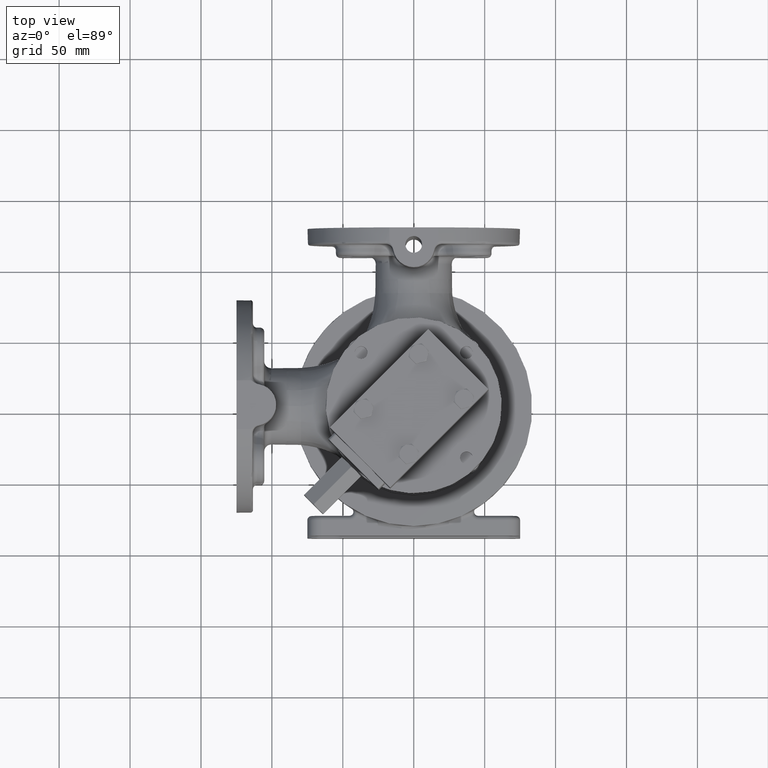
[diagram: clean part render]
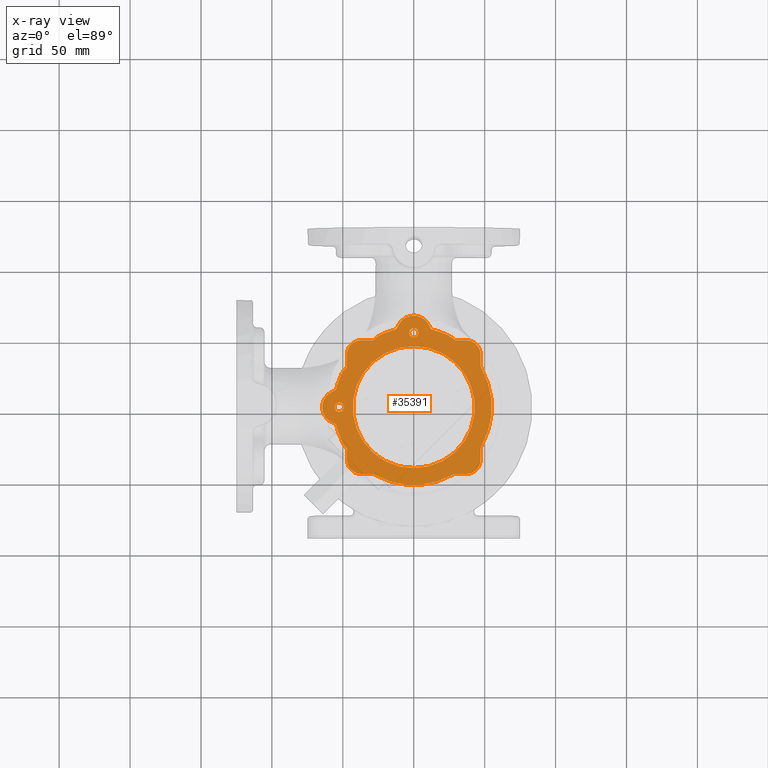
[diagram: x-ray — body ghosted, one internal face saturated and labeled with its STEP entity id]
A machine part, top view, then the same camera in x-ray: the body is ghosted and one INTERNAL B-rep face — a face not visible from any outside direction — is saturated and labeled: STEP entity #35391.
In plain terms, the highlighted planar face has unit normal (0, 0, 1).
Its self-contained STEP definition (entity closure, byte-faithful):
#6=CARTESIAN_POINT('',(-3.712310601229E1,-3.712310601229E1,1.415E2));
#7=DIRECTION('',(0.E0,0.E0,1.E0));
#8=DIRECTION('',(-1.E0,0.E0,0.E0));
#9=AXIS2_PLACEMENT_3D('',#6,#7,#8);
#81=CARTESIAN_POINT('',(0.E0,5.25E1,1.415E2));
#82=DIRECTION('',(0.E0,0.E0,-1.E0));
#83=DIRECTION('',(-1.E0,0.E0,0.E0));
#84=AXIS2_PLACEMENT_3D('',#81,#82,#83);
#86=CARTESIAN_POINT('',(0.E0,5.25E1,1.415E2));
#87=DIRECTION('',(0.E0,0.E0,-1.E0));
#88=DIRECTION('',(1.E0,0.E0,0.E0));
#89=AXIS2_PLACEMENT_3D('',#86,#87,#88);
#91=CARTESIAN_POINT('',(-5.25E1,-1.679623939384E-14,1.415E2));
#92=DIRECTION('',(0.E0,0.E0,-1.E0));
#93=DIRECTION('',(-1.E0,0.E0,0.E0));
#94=AXIS2_PLACEMENT_3D('',#91,#92,#93);
#96=CARTESIAN_POINT('',(-5.25E1,-1.679623939384E-14,1.415E2));
#97=DIRECTION('',(0.E0,0.E0,-1.E0));
#98=DIRECTION('',(1.E0,0.E0,0.E0));
#99=AXIS2_PLACEMENT_3D('',#96,#97,#98);
#101=CARTESIAN_POINT('',(0.E0,-1.679623939384E-14,1.415E2));
#102=DIRECTION('',(0.E0,0.E0,1.E0));
#103=DIRECTION('',(-4.953062519602E-1,-8.687184335382E-1,0.E0));
#104=AXIS2_PLACEMENT_3D('',#101,#102,#103);
#139=CARTESIAN_POINT('',(-2.971837511761E1,-5.212310601229E1,1.415E2));
#140=DIRECTION('',(0.E0,0.E0,1.E0));
#141=DIRECTION('',(4.953062519602E-1,8.687184335382E-1,0.E0));
#142=AXIS2_PLACEMENT_3D('',#139,#140,#141);
#160=DIRECTION('',(1.E0,0.E0,0.E0));
#161=VECTOR('',#160,7.404730894680E0);
#162=CARTESIAN_POINT('',(-3.712310601229E1,-4.712310601229E1,1.415E2));
#163=LINE('',#162,#161);
#590=DIRECTION('',(0.E0,-1.E0,1.091621590572E-14));
#591=VECTOR('',#590,7.810868622207E0);
#592=CARTESIAN_POINT('',(-4.712310601229E1,-2.931223739009E1,1.415E2));
#593=LINE('',#592,#591);
#619=CARTESIAN_POINT('',(-4.728166174774E1,-2.915214253709E1,1.415E2));
#620=CARTESIAN_POINT('',(-4.726433382753E1,-2.916966617616E1,1.415E2));
#621=CARTESIAN_POINT('',(-4.722947854098E1,-2.920489765746E1,1.415E2));
#622=CARTESIAN_POINT('',(-4.717663018248E1,-2.925826053646E1,1.415E2));
#623=CARTESIAN_POINT('',(-4.714101151573E1,-2.929418719527E1,1.415E2));
#624=CARTESIAN_POINT('',(-4.712310601229E1,-2.931223739009E1,1.415E2));
#626=CARTESIAN_POINT('',(-4.971993478123E1,-2.559230963598E1,1.415E2));
#627=CARTESIAN_POINT('',(-4.970049094820E1,-2.562827645949E1,1.415E2));
#628=CARTESIAN_POINT('',(-4.966417514143E1,-2.569687999923E1,1.415E2));
#629=CARTESIAN_POINT('',(-4.961712538567E1,-2.578876515191E1,1.415E2));
#630=CARTESIAN_POINT('',(-4.957592939547E1,-2.587140109150E1,1.415E2));
#631=CARTESIAN_POINT('',(-4.953952293087E1,-2.594599272070E1,1.415E2));
#632=CARTESIAN_POINT('',(-4.950691293778E1,-2.601387637152E1,1.415E2));
#633=CARTESIAN_POINT('',(-4.947719043576E1,-2.607645616307E1,1.415E2));
#634=CARTESIAN_POINT('',(-4.944948250010E1,-2.613521708505E1,1.415E2));
#635=CARTESIAN_POINT('',(-4.942300150610E1,-2.619158212542E1,1.415E2));
#636=CARTESIAN_POINT('',(-4.939708525617E1,-2.624675601165E1,1.415E2));
#637=CARTESIAN_POINT('',(-4.937105571887E1,-2.630200062809E1,1.415E2));
#638=CARTESIAN_POINT('',(-4.934423700682E1,-2.635855526005E1,1.415E2));
#639=CARTESIAN_POINT('',(-4.931594404041E1,-2.641762002110E1,1.415E2));
#640=CARTESIAN_POINT('',(-4.928542007991E1,-2.648046969624E1,1.415E2));
#641=CARTESIAN_POINT('',(-4.925165183365E1,-2.654875095571E1,1.415E2));
#642=CARTESIAN_POINT('',(-4.921359886377E1,-2.662397622807E1,1.415E2));
#643=CARTESIAN_POINT('',(-4.917015023319E1,-2.670753526085E1,1.415E2));
#644=CARTESIAN_POINT('',(-4.912013069611E1,-2.680067893822E1,1.415E2));
#645=CARTESIAN_POINT('',(-4.906214885176E1,-2.690475021904E1,1.415E2));
#646=CARTESIAN_POINT('',(-4.899476704013E1,-2.702085532956E1,1.415E2));
#647=CARTESIAN_POINT('',(-4.891651462517E1,-2.714986850313E1,1.415E2));
#648=CARTESIAN_POINT('',(-4.882527272545E1,-2.729341314129E1,1.415E2));
#649=CARTESIAN_POINT('',(-4.871890976769E1,-2.745273081834E1,1.415E2));
#650=CARTESIAN_POINT('',(-4.859488132557E1,-2.762931459446E1,1.415E2));
#651=CARTESIAN_POINT('',(-4.845026061657E1,-2.782479349803E1,1.415E2));
#652=CARTESIAN_POINT('',(-4.828180692010E1,-2.804079009626E1,1.415E2));
#653=CARTESIAN_POINT('',(-4.808602242760E1,-2.827887032430E1,1.415E2));
#654=CARTESIAN_POINT('',(-4.785872508746E1,-2.854100845344E1,1.415E2));
#655=CARTESIAN_POINT('',(-4.759556703183E1,-2.882902734419E1,1.415E2));
#656=CARTESIAN_POINT('',(-4.739110825189E1,-2.904145883565E1,1.415E2));
#657=CARTESIAN_POINT('',(-4.728166174774E1,-2.915214253709E1,1.415E2));
#669=CARTESIAN_POINT('',(-5.007215140923E1,-2.501190226950E1,1.415E2));
#670=CARTESIAN_POINT('',(-5.004144000523E1,-2.505785123759E1,1.415E2));
#671=CARTESIAN_POINT('',(-4.998310307595E1,-2.514699384683E1,1.415E2));
#672=CARTESIAN_POINT('',(-4.990452325758E1,-2.527220618376E1,1.415E2));
#673=CARTESIAN_POINT('',(-4.983453337879E1,-2.538861384531E1,1.415E2));
#674=CARTESIAN_POINT('',(-4.977272619964E1,-2.549596375449E1,1.415E2));
#675=CARTESIAN_POINT('',(-4.973671893239E1,-2.556126269307E1,1.415E2));
#676=CARTESIAN_POINT('',(-4.971993478123E1,-2.559230963598E1,1.415E2));
#683=CARTESIAN_POINT('',(-5.061314195032E1,-2.408514964643E1,1.415E2));
#684=CARTESIAN_POINT('',(-5.058251431894E1,-2.414802683131E1,1.415E2));
#685=CARTESIAN_POINT('',(-5.051470017509E1,-2.428133857664E1,1.415E2));
#686=CARTESIAN_POINT('',(-5.039153244684E1,-2.450336517100E1,1.415E2));
#687=CARTESIAN_POINT('',(-5.024576506462E1,-2.474613981131E1,1.415E2));
#688=CARTESIAN_POINT('',(-5.013278361899E1,-2.492118758747E1,1.415E2));
#689=CARTESIAN_POINT('',(-5.007215140923E1,-2.501190226950E1,1.415E2));
#706=CARTESIAN_POINT('',(-5.061314195032E1,-2.408514964643E1,1.415E2));
#707=CARTESIAN_POINT('',(-5.081898038992E1,-2.366257113717E1,1.415E2));
#708=CARTESIAN_POINT('',(-5.121966723622E1,-2.281246045666E1,1.414999999998E2));
#709=CARTESIAN_POINT('',(-5.178793003969E1,-2.152208179754E1,1.415000000008E2));
#710=CARTESIAN_POINT('',(-5.232291506602E1,-2.021757921288E1,1.414999999969E2));
#711=CARTESIAN_POINT('',(-5.265710663671E1,-1.933923191208E1,1.415000000068E2));
#712=CARTESIAN_POINT('',(-5.281860501E1,-1.889782472858E1,1.415000000068E2));
#733=CARTESIAN_POINT('',(-5.281860501E1,-1.889782472858E1,1.415000000068E2));
#734=CARTESIAN_POINT('',(-5.288837114108E1,-1.870714009882E1,1.415000000068E2));
#735=CARTESIAN_POINT('',(-5.301768986092E1,-1.834718103312E1,1.414999999969E2));
#736=CARTESIAN_POINT('',(-5.318087828525E1,-1.787868141150E1,1.415000000008E2));
#737=CARTESIAN_POINT('',(-5.332178001087E1,-1.746295119127E1,1.414999999998E2));
#738=CARTESIAN_POINT('',(-5.344577217384E1,-1.708786180374E1,1.415000000001E2));
#739=CARTESIAN_POINT('',(-5.355836012587E1,-1.673930769350E1,1.415E2));
#740=CARTESIAN_POINT('',(-5.366438628176E1,-1.640371683705E1,1.415E2));
#741=CARTESIAN_POINT('',(-5.376865376495E1,-1.606624375385E1,1.414999999999E2));
#742=CARTESIAN_POINT('',(-5.387112685010E1,-1.572683629754E1,1.415000000004E2));
#743=CARTESIAN_POINT('',(-5.397141727463E1,-1.538674296131E1,1.414999999987E2));
#744=CARTESIAN_POINT('',(-5.403657538972E1,-1.516042510726E1,1.415000000028E2));
#745=CARTESIAN_POINT('',(-5.406876129736E1,-1.504727061823E1,1.415000000028E2));
#752=CARTESIAN_POINT('',(-5.406876129736E1,-1.504727061823E1,1.415000000028E2));
#753=CARTESIAN_POINT('',(-5.411400698140E1,-1.488820227626E1,1.415000000028E2));
#754=CARTESIAN_POINT('',(-5.420309648044E1,-1.456953369677E1,1.415000000949E2));
#755=CARTESIAN_POINT('',(-5.433247792379E1,-1.409008372011E1,1.414999996637E2));
#756=CARTESIAN_POINT('',(-5.441589077656E1,-1.376951173394E1,1.415000007215E2));
#757=CARTESIAN_POINT('',(-5.445688851025E1,-1.360897513629E1,1.415000007215E2));
#764=CARTESIAN_POINT('',(-5.766607556080E1,-1.442850605003E1,1.415E2));
#765=DIRECTION('',(0.E0,0.E0,1.E0));
#766=DIRECTION('',(5.429244443501E-1,8.397815476225E-1,0.E0));
#767=AXIS2_PLACEMENT_3D('',#764,#765,#766);
#774=CARTESIAN_POINT('',(-5.713956354499E1,-1.106681760069E1,1.415E2));
#775=CARTESIAN_POINT('',(-5.706433195329E1,-1.109835723390E1,1.415E2));
#776=CARTESIAN_POINT('',(-5.691279536431E1,-1.116128120254E1,1.415E2));
#777=CARTESIAN_POINT('',(-5.668225561049E1,-1.125517934679E1,1.415E2));
#778=CARTESIAN_POINT('',(-5.652641025586E1,-1.131742872816E1,1.415E2));
#779=CARTESIAN_POINT('',(-5.644794576263E1,-1.134846071922E1,1.415E2));
#786=CARTESIAN_POINT('',(-5.25E1,-2.048347565099E-14,1.415E2));
#787=DIRECTION('',(0.E0,0.E0,-1.E0));
#788=DIRECTION('',(-3.866302718803E-1,-9.222348035429E-1,0.E0));
#789=AXIS2_PLACEMENT_3D('',#786,#787,#788);
#875=CARTESIAN_POINT('',(-5.616205261286E1,1.154574625358E1,1.415E2));
#876=CARTESIAN_POINT('',(-5.637105221390E1,1.145253636057E1,1.415E2));
#877=CARTESIAN_POINT('',(-5.678387569379E1,1.126382077468E1,1.415E2));
#878=CARTESIAN_POINT('',(-5.738800267353E1,1.097456826785E1,1.415E2));
#879=CARTESIAN_POINT('',(-5.778056001826E1,1.077789891593E1,1.415E2));
#880=CARTESIAN_POINT('',(-5.797429868267E1,1.067857929843E1,1.415E2));
#887=CARTESIAN_POINT('',(-5.734347622586E1,1.419478788130E1,1.415E2));
#888=DIRECTION('',(0.E0,0.E0,1.E0));
#889=DIRECTION('',(4.073093388434E-1,-9.132902619053E-1,0.E0));
#890=AXIS2_PLACEMENT_3D('',#887,#888,#889);
#897=CARTESIAN_POINT('',(-5.406871411020E1,1.522148055457E1,1.415E2));
#898=CARTESIAN_POINT('',(-5.412354117327E1,1.502752859218E1,1.415E2));
#899=CARTESIAN_POINT('',(-5.423065912158E1,1.464072503325E1,1.415E2));
#900=CARTESIAN_POINT('',(-5.438430045240E1,1.406394691566E1,1.415E2));
#901=CARTESIAN_POINT('',(-5.448191480599E1,1.368174982552E1,1.415E2));
#902=CARTESIAN_POINT('',(-5.452954880181E1,1.349123347441E1,1.415E2));
#922=CARTESIAN_POINT('',(-5.253157784740E1,1.966458970883E1,1.415E2));
#923=CARTESIAN_POINT('',(-5.258798210665E1,1.951726025307E1,1.415E2));
#924=CARTESIAN_POINT('',(-5.270108768979E1,1.922294209466E1,1.415E2));
#925=CARTESIAN_POINT('',(-5.286903311540E1,1.878454758167E1,1.415E2));
#926=CARTESIAN_POINT('',(-5.303689072775E1,1.834068624009E1,1.415E2));
#927=CARTESIAN_POINT('',(-5.320516900533E1,1.788568509376E1,1.415E2));
#928=CARTESIAN_POINT('',(-5.337459521622E1,1.741311557611E1,1.415E2));
#929=CARTESIAN_POINT('',(-5.354555619704E1,1.691691591907E1,1.415E2));
#930=CARTESIAN_POINT('',(-5.371832327567E1,1.639093845517E1,1.415E2));
#931=CARTESIAN_POINT('',(-5.389270654575E1,1.583045588136E1,1.415E2));
#932=CARTESIAN_POINT('',(-5.401007373416E1,1.542890941775E1,1.415E2));
#933=CARTESIAN_POINT('',(-5.406871411020E1,1.522148055457E1,1.415E2));
#940=CARTESIAN_POINT('',(-5.253157784740E1,1.966458970883E1,1.415E2));
#941=CARTESIAN_POINT('',(-5.240106294892E1,2.000549721075E1,1.415E2));
#942=CARTESIAN_POINT('',(-5.213331050893E1,2.068454912003E1,1.415E2));
#943=CARTESIAN_POINT('',(-5.171145379172E1,2.169501443821E1,1.415E2));
#944=CARTESIAN_POINT('',(-5.126957403387E1,2.269685117817E1,1.415E2));
#945=CARTESIAN_POINT('',(-5.096180243946E1,2.335864739473E1,1.415E2));
#946=CARTESIAN_POINT('',(-5.080460267298E1,2.368805407818E1,1.415E2));
#965=CARTESIAN_POINT('',(-4.873159145178E1,2.666391277988E1,1.415E2));
#966=CARTESIAN_POINT('',(-4.888429041394E1,2.648836551192E1,1.415E2));
#967=CARTESIAN_POINT('',(-4.916932707595E1,2.615021368601E1,1.415E2));
#968=CARTESIAN_POINT('',(-4.953801686022E1,2.568464866278E1,1.415E2));
#969=CARTESIAN_POINT('',(-4.985189809305E1,2.526158170490E1,1.415E2));
#970=CARTESIAN_POINT('',(-5.011665459107E1,2.487951564874E1,1.415E2));
#971=CARTESIAN_POINT('',(-5.033944296658E1,2.453395380745E1,1.415E2));
#972=CARTESIAN_POINT('',(-5.052561465283E1,2.422195623406E1,1.415E2));
#973=CARTESIAN_POINT('',(-5.068024322709E1,2.394027866367E1,1.415E2));
#974=CARTESIAN_POINT('',(-5.076595995046E1,2.376902816798E1,1.415E2));
#975=CARTESIAN_POINT('',(-5.080460267298E1,2.368805407818E1,1.415E2));
#1005=CARTESIAN_POINT('',(-4.845296708379E1,2.697903018443E1,1.415E2));
#1006=CARTESIAN_POINT('',(-4.848442021942E1,2.694403003371E1,1.415E2));
#1007=CARTESIAN_POINT('',(-4.854699587603E1,2.687401887062E1,1.415E2));
#1008=CARTESIAN_POINT('',(-4.863987037579E1,2.676897578589E1,1.415E2));
#1009=CARTESIAN_POINT('',(-4.870112647873E1,2.669893622657E1,1.415E2));
#1010=CARTESIAN_POINT('',(-4.873159145178E1,2.666391277988E1,1.415E2));
#1024=CARTESIAN_POINT('',(-4.813603270686E1,2.732504614282E1,1.415E2));
#1025=CARTESIAN_POINT('',(-4.817288231146E1,2.728554063773E1,1.415E2));
#1026=CARTESIAN_POINT('',(-4.824551085024E1,2.720725369339E1,1.415E2));
#1027=CARTESIAN_POINT('',(-4.835112494504E1,2.709188119269E1,1.415E2));
#1028=CARTESIAN_POINT('',(-4.841937781692E1,2.701640736379E1,1.415E2));
#1029=CARTESIAN_POINT('',(-4.845296708379E1,2.697903018443E1,1.415E2));
#1043=CARTESIAN_POINT('',(-4.712310601229E1,2.836823103778E1,1.415E2));
#1044=CARTESIAN_POINT('',(-4.716614798511E1,2.832579950894E1,1.415E2));
#1045=CARTESIAN_POINT('',(-4.725191074678E1,2.824077368263E1,1.415E2));
#1046=CARTESIAN_POINT('',(-4.737948232175E1,2.811290245910E1,1.415E2));
#1047=CARTESIAN_POINT('',(-4.750636462361E1,2.798428834074E1,1.415E2));
#1048=CARTESIAN_POINT('',(-4.763276213464E1,2.785467126329E1,1.415E2));
#1049=CARTESIAN_POINT('',(-4.775905142758E1,2.772381408350E1,1.415E2));
#1050=CARTESIAN_POINT('',(-4.788512764375E1,2.759187568178E1,1.415E2));
#1051=CARTESIAN_POINT('',(-4.801082897004E1,2.745890569501E1,1.415E2));
#1052=CARTESIAN_POINT('',(-4.809433935198E1,2.736975553927E1,1.415E2));
#1053=CARTESIAN_POINT('',(-4.813603270686E1,2.732504614282E1,1.415E2));
#1060=DIRECTION('',(0.E0,-1.E0,0.E0));
#1061=VECTOR('',#1060,8.754874974514E0);
#1062=CARTESIAN_POINT('',(-4.712310601229E1,3.712310601229E1,1.415E2));
#1063=LINE('',#1062,#1061);
#1101=CARTESIAN_POINT('',(-3.712310601229E1,3.712310601229E1,1.415E2));
#1102=DIRECTION('',(0.E0,0.E0,1.E0));
#1103=DIRECTION('',(0.E0,1.E0,0.E0));
#1104=AXIS2_PLACEMENT_3D('',#1101,#1102,#1103);
#1115=DIRECTION('',(-1.E0,0.E0,0.E0));
#1116=VECTOR('',#1115,8.754881892562E0);
#1117=CARTESIAN_POINT('',(-2.836822411973E1,4.712310601229E1,1.415E2));
#1118=LINE('',#1117,#1116);
#1152=CARTESIAN_POINT('',(-2.732504094214E1,4.813603532393E1,1.415E2));
#1153=CARTESIAN_POINT('',(-2.736982813797E1,4.809426902006E1,1.415E2));
#1154=CARTESIAN_POINT('',(-2.745916608208E1,4.801057958225E1,1.415E2));
#1155=CARTESIAN_POINT('',(-2.759260573174E1,4.788443882016E1,1.415E2));
#1156=CARTESIAN_POINT('',(-2.772493599841E1,4.775797552297E1,1.415E2));
#1157=CARTESIAN_POINT('',(-2.785595248212E1,4.763151441971E1,1.415E2));
#1158=CARTESIAN_POINT('',(-2.798532311988E1,4.750534478752E1,1.415E2));
#1159=CARTESIAN_POINT('',(-2.811350159140E1,4.737888905129E1,1.415E2));
#1160=CARTESIAN_POINT('',(-2.824092119397E1,4.725175746763E1,1.415E2));
#1161=CARTESIAN_POINT('',(-2.832582446815E1,4.716611524430E1,1.415E2));
#1162=CARTESIAN_POINT('',(-2.836822411973E1,4.712310601229E1,1.415E2));
#1169=CARTESIAN_POINT('',(-2.697903021253E1,4.845296705867E1,1.415E2));
#1170=CARTESIAN_POINT('',(-2.701640693432E1,4.841937820286E1,1.415E2));
#1171=CARTESIAN_POINT('',(-2.709187968933E1,4.835112601283E1,1.415E2));
#1172=CARTESIAN_POINT('',(-2.720725148772E1,4.824551391191E1,1.415E2));
#1173=CARTESIAN_POINT('',(-2.728553588872E1,4.817288448977E1,1.415E2));
#1174=CARTESIAN_POINT('',(-2.732504094214E1,4.813603532393E1,1.415E2));
#1183=CARTESIAN_POINT('',(-2.666391288122E1,4.873159136349E1,1.415E2));
#1184=CARTESIAN_POINT('',(-2.669893632459E1,4.870112639305E1,1.415E2));
#1185=CARTESIAN_POINT('',(-2.676897589901E1,4.863987027632E1,1.415E2));
#1186=CARTESIAN_POINT('',(-2.687401894510E1,4.854699580970E1,1.415E2));
#1187=CARTESIAN_POINT('',(-2.694403008415E1,4.848442017431E1,1.415E2));
#1188=CARTESIAN_POINT('',(-2.697903021253E1,4.845296705867E1,1.415E2));
#1202=CARTESIAN_POINT('',(-2.368805395646E1,5.080460263206E1,1.415E2));
#1203=CARTESIAN_POINT('',(-2.376900919727E1,5.076596901597E1,1.415E2));
#1204=CARTESIAN_POINT('',(-2.394024327549E1,5.068026210475E1,1.415E2));
#1205=CARTESIAN_POINT('',(-2.422196926158E1,5.052560870635E1,1.415E2));
#1206=CARTESIAN_POINT('',(-2.453406068142E1,5.033937785560E1,1.415E2));
#1207=CARTESIAN_POINT('',(-2.487970595554E1,5.011652780379E1,1.415E2));
#1208=CARTESIAN_POINT('',(-2.526186795061E1,4.985169367125E1,1.415E2));
#1209=CARTESIAN_POINT('',(-2.568501130305E1,4.953773764041E1,1.415E2));
#1210=CARTESIAN_POINT('',(-2.615044727218E1,4.916913264378E1,1.415E2));
#1211=CARTESIAN_POINT('',(-2.648845610169E1,4.888421161597E1,1.415E2));
#1212=CARTESIAN_POINT('',(-2.666391288122E1,4.873159136349E1,1.415E2));
#1264=CARTESIAN_POINT('',(-1.966458962805E1,5.253157787882E1,1.415E2));
#1265=CARTESIAN_POINT('',(-2.000549706367E1,5.240106300630E1,1.415E2));
#1266=CARTESIAN_POINT('',(-2.068454883061E1,5.213331062807E1,1.415E2));
#1267=CARTESIAN_POINT('',(-2.169501390419E1,5.171145400603E1,1.415E2));
#1268=CARTESIAN_POINT('',(-2.269685059401E1,5.126957434931E1,1.415E2));
#1269=CARTESIAN_POINT('',(-2.335864754397E1,5.096180227169E1,1.415E2));
#1270=CARTESIAN_POINT('',(-2.368805395646E1,5.080460263206E1,1.415E2));
#1272=CARTESIAN_POINT('',(-1.522148056449E1,5.406871410739E1,1.415E2));
#1273=CARTESIAN_POINT('',(-1.542888664544E1,5.401008016641E1,1.415E2));
#1274=CARTESIAN_POINT('',(-1.583041624199E1,5.389271854014E1,1.415E2));
#1275=CARTESIAN_POINT('',(-1.639098593376E1,5.371830855361E1,1.415E2));
#1276=CARTESIAN_POINT('',(-1.691707915942E1,5.354550218994E1,1.415E2));
#1277=CARTESIAN_POINT('',(-1.741334515061E1,5.337451445133E1,1.415E2));
#1278=CARTESIAN_POINT('',(-1.788593605936E1,5.320507763903E1,1.415E2));
#1279=CARTESIAN_POINT('',(-1.834095669296E1,5.303678943117E1,1.415E2));
#1280=CARTESIAN_POINT('',(-1.878480351440E1,5.286893548727E1,1.415E2));
#1281=CARTESIAN_POINT('',(-1.922312545719E1,5.270101715538E1,1.415E2));
#1282=CARTESIAN_POINT('',(-1.951733072695E1,5.258795512479E1,1.415E2));
#1283=CARTESIAN_POINT('',(-1.966458962805E1,5.253157787882E1,1.415E2));
#1290=CARTESIAN_POINT('',(-1.349123352949E1,5.452954881873E1,1.415E2));
#1291=CARTESIAN_POINT('',(-1.368174986228E1,5.448191482753E1,1.415E2));
#1292=CARTESIAN_POINT('',(-1.406394705765E1,5.438430040048E1,1.415E2));
#1293=CARTESIAN_POINT('',(-1.464072510954E1,5.423065910462E1,1.415E2));
#1294=CARTESIAN_POINT('',(-1.502752863169E1,5.412354116217E1,1.415E2));
#1295=CARTESIAN_POINT('',(-1.522148056449E1,5.406871410739E1,1.415E2));
#1315=CARTESIAN_POINT('',(-1.419478794616E1,5.734347649520E1,1.415E2));
#1316=DIRECTION('',(0.E0,0.E0,1.E0));
#1317=DIRECTION('',(2.425591529596E-1,-9.701366178614E-1,0.E0));
#1318=AXIS2_PLACEMENT_3D('',#1315,#1316,#1317);
#1320=CARTESIAN_POINT('',(-1.067857959211E1,5.797429795120E1,1.415E2));
#1321=CARTESIAN_POINT('',(-1.077791520416E1,5.778052703165E1,1.415E2));
#1322=CARTESIAN_POINT('',(-1.097460557515E1,5.738792705227E1,1.415E2));
#1323=CARTESIAN_POINT('',(-1.126385627646E1,5.678379945090E1,1.415E2));
#1324=CARTESIAN_POINT('',(-1.145255091784E1,5.637101955302E1,1.415E2));
#1325=CARTESIAN_POINT('',(-1.154574609490E1,5.616205292622E1,1.415E2));
#1332=CARTESIAN_POINT('',(0.E0,5.25E1,1.415E2));
#1333=DIRECTION('',(0.E0,0.E0,-1.E0));
#1334=DIRECTION('',(-8.898816331407E-1,4.561914937817E-1,0.E0));
#1335=AXIS2_PLACEMENT_3D('',#1332,#1333,#1334);
#1421=CARTESIAN_POINT('',(1.134846050886E1,5.644794625592E1,1.415E2));
#1422=CARTESIAN_POINT('',(1.131742728199E1,5.652641386801E1,1.415E2));
#1423=CARTESIAN_POINT('',(1.125517639444E1,5.668226299290E1,1.415E2));
#1424=CARTESIAN_POINT('',(1.116127842814E1,5.691280230984E1,1.415E2));
#1425=CARTESIAN_POINT('',(1.109835624970E1,5.706433444119E1,1.415E2));
#1426=CARTESIAN_POINT('',(1.106681802413E1,5.713956264001E1,1.415E2));
#1433=CARTESIAN_POINT('',(1.442850623085E1,5.766607628852E1,1.415E2));
#1434=DIRECTION('',(0.E0,0.E0,1.E0));
#1435=DIRECTION('',(-9.299154720749E-1,-3.677733198531E-1,0.E0));
#1436=AXIS2_PLACEMENT_3D('',#1433,#1434,#1435);
#1443=CARTESIAN_POINT('',(1.360897515180E1,5.445688853384E1,1.415000006868E2));
#1444=CARTESIAN_POINT('',(1.354842878414E1,5.447234899091E1,1.415000006868E2));
#1445=CARTESIAN_POINT('',(1.342950839695E1,5.450607588243E1,1.414999996813E2));
#1446=CARTESIAN_POINT('',(1.325758359284E1,5.456476013327E1,1.415000000854E2));
#1447=CARTESIAN_POINT('',(1.309221436504E1,5.463119305069E1,1.414999999771E2));
#1448=CARTESIAN_POINT('',(1.293335063813E1,5.470505678582E1,1.415000000061E2));
#1449=CARTESIAN_POINT('',(1.278006943974E1,5.478656550158E1,1.414999999984E2));
#1450=CARTESIAN_POINT('',(1.263252837251E1,5.487553013529E1,1.415000000004E2));
#1451=CARTESIAN_POINT('',(1.249081477968E1,5.497175700361E1,1.414999999999E2));
#1452=CARTESIAN_POINT('',(1.235455929726E1,5.507541217453E1,1.415E2));
#1453=CARTESIAN_POINT('',(1.222333649704E1,5.518688962296E1,1.415E2));
#1454=CARTESIAN_POINT('',(1.209735686908E1,5.530617556032E1,1.415E2));
#1455=CARTESIAN_POINT('',(1.197682635267E1,5.543320741151E1,1.415E2));
#1456=CARTESIAN_POINT('',(1.186125693916E1,5.556878735773E1,1.415E2));
#1457=CARTESIAN_POINT('',(1.175088588194E1,5.571312394919E1,1.415E2));
#1458=CARTESIAN_POINT('',(1.168098621583E1,5.581524555569E1,1.415E2));
#1459=CARTESIAN_POINT('',(1.164699947088E1,5.586781539924E1,1.415E2));
#1466=CARTESIAN_POINT('',(1.504727061823E1,5.406876129736E1,1.415000000028E2));
#1467=CARTESIAN_POINT('',(1.488820237864E1,5.411400695213E1,1.415000000028E2));
#1468=CARTESIAN_POINT('',(1.456953393667E1,5.420309641709E1,1.415000000903E2));
#1469=CARTESIAN_POINT('',(1.409008396641E1,5.433247783779E1,1.414999996799E2));
#1470=CARTESIAN_POINT('',(1.376951184515E1,5.441589077572E1,1.415000006868E2));
#1471=CARTESIAN_POINT('',(1.360897515180E1,5.445688853384E1,1.415000006868E2));
#1478=CARTESIAN_POINT('',(1.889782472700E1,5.281860501049E1,1.415000000067E2));
#1479=CARTESIAN_POINT('',(1.870714007721E1,5.288837114996E1,1.415000000067E2));
#1480=CARTESIAN_POINT('',(1.834718098101E1,5.301768987984E1,1.414999999969E2));
#1481=CARTESIAN_POINT('',(1.787868134485E1,5.318087830877E1,1.415000000008E2));
#1482=CARTESIAN_POINT('',(1.746295110215E1,5.332178003992E1,1.414999999998E2));
#1483=CARTESIAN_POINT('',(1.708786172331E1,5.344577220014E1,1.415000000001E2));
#1484=CARTESIAN_POINT('',(1.673930763050E1,5.355836014599E1,1.415E2));
#1485=CARTESIAN_POINT('',(1.640371679293E1,5.366438629567E1,1.415E2));
#1486=CARTESIAN_POINT('',(1.606624372203E1,5.376865377478E1,1.414999999999E2));
#1487=CARTESIAN_POINT('',(1.572683627105E1,5.387112685784E1,1.415000000004E2));
#1488=CARTESIAN_POINT('',(1.538674296300E1,5.397141727419E1,1.414999999987E2));
#1489=CARTESIAN_POINT('',(1.516042510905E1,5.403657538921E1,1.415000000028E2));
#1490=CARTESIAN_POINT('',(1.504727061823E1,5.406876129736E1,1.415000000028E2));
#1497=CARTESIAN_POINT('',(2.408514955552E1,5.061314190354E1,1.415E2));
#1498=CARTESIAN_POINT('',(2.366257129750E1,5.081898022386E1,1.415E2));
#1499=CARTESIAN_POINT('',(2.281245996213E1,5.121966750944E1,1.414999999998E2));
#1500=CARTESIAN_POINT('',(2.152208136253E1,5.178793021002E1,1.415000000008E2));
#1501=CARTESIAN_POINT('',(2.021757901641E1,5.232291514505E1,1.414999999969E2));
#1502=CARTESIAN_POINT('',(1.933923184110E1,5.265710666260E1,1.415000000067E2));
#1503=CARTESIAN_POINT('',(1.889782472700E1,5.281860501049E1,1.415000000067E2));
#1524=CARTESIAN_POINT('',(2.501190092848E1,5.007215205480E1,1.415E2));
#1525=CARTESIAN_POINT('',(2.492121109805E1,5.013276779266E1,1.415E2));
#1526=CARTESIAN_POINT('',(2.474620157067E1,5.024572617848E1,1.415E2));
#1527=CARTESIAN_POINT('',(2.450344643379E1,5.039148585490E1,1.415E2));
#1528=CARTESIAN_POINT('',(2.428140485224E1,5.051466560417E1,1.415E2));
#1529=CARTESIAN_POINT('',(2.414805418889E1,5.058250103153E1,1.415E2));
#1530=CARTESIAN_POINT('',(2.408514955552E1,5.061314190354E1,1.415E2));
#1547=CARTESIAN_POINT('',(2.559230308458E1,4.971993767676E1,1.415E2));
#1548=CARTESIAN_POINT('',(2.556125645863E1,4.973672170452E1,1.415E2));
#1549=CARTESIAN_POINT('',(2.549595816116E1,4.977272871752E1,1.415E2));
#1550=CARTESIAN_POINT('',(2.538860923969E1,4.983453549168E1,1.415E2));
#1551=CARTESIAN_POINT('',(2.527220258344E1,4.990452494730E1,1.415E2));
#1552=CARTESIAN_POINT('',(2.514699132695E1,4.998310428869E1,1.415E2));
#1553=CARTESIAN_POINT('',(2.505784956804E1,5.004144080011E1,1.415E2));
#1554=CARTESIAN_POINT('',(2.501190092848E1,5.007215205480E1,1.415E2));
#1561=CARTESIAN_POINT('',(2.915213821117E1,4.728166478017E1,1.415E2));
#1562=CARTESIAN_POINT('',(2.904155997274E1,4.739100703808E1,1.415E2));
#1563=CARTESIAN_POINT('',(2.882932025059E1,4.759528836881E1,1.415E2));
#1564=CARTESIAN_POINT('',(2.854155526314E1,4.785823347300E1,1.415E2));
#1565=CARTESIAN_POINT('',(2.827963361724E1,4.808537393224E1,1.415E2));
#1566=CARTESIAN_POINT('',(2.804173229260E1,4.828104923829E1,1.415E2));
#1567=CARTESIAN_POINT('',(2.782589590477E1,4.844942029024E1,1.415E2));
#1568=CARTESIAN_POINT('',(2.763057982488E1,4.859396641408E1,1.415E2));
#1569=CARTESIAN_POINT('',(2.745413101558E1,4.871794813999E1,1.415E2));
#1570=CARTESIAN_POINT('',(2.729494988086E1,4.882426931195E1,1.415E2));
#1571=CARTESIAN_POINT('',(2.715148103786E1,4.891551139819E1,1.415E2));
#1572=CARTESIAN_POINT('',(2.702260881860E1,4.899372372624E1,1.415E2));
#1573=CARTESIAN_POINT('',(2.690676439236E1,4.906100076391E1,1.415E2));
#1574=CARTESIAN_POINT('',(2.680286635011E1,4.911893264283E1,1.415E2));
#1575=CARTESIAN_POINT('',(2.670979795833E1,4.916895409512E1,1.415E2));
#1576=CARTESIAN_POINT('',(2.662612470334E1,4.921249794324E1,1.415E2));
#1577=CARTESIAN_POINT('',(2.655055697781E1,4.925075010717E1,1.415E2));
#1578=CARTESIAN_POINT('',(2.648186488758E1,4.928473767764E1,1.415E2));
#1579=CARTESIAN_POINT('',(2.641864336307E1,4.931545121839E1,1.415E2));
#1580=CARTESIAN_POINT('',(2.635936755598E1,4.934385018319E1,1.415E2));
#1581=CARTESIAN_POINT('',(2.630268941941E1,4.937073018039E1,1.415E2));
#1582=CARTESIAN_POINT('',(2.624739143534E1,4.939678626072E1,1.415E2));
#1583=CARTESIAN_POINT('',(2.619219960250E1,4.942271126275E1,1.415E2));
#1584=CARTESIAN_POINT('',(2.613584563517E1,4.944918642412E1,1.415E2));
#1585=CARTESIAN_POINT('',(2.607711072709E1,4.947688043052E1,1.415E2));
#1586=CARTESIAN_POINT('',(2.601459083670E1,4.950657142324E1,1.415E2));
#1587=CARTESIAN_POINT('',(2.594675131937E1,4.953915529520E1,1.415E2));
#1588=CARTESIAN_POINT('',(2.587214845766E1,4.957556011392E1,1.415E2));
#1589=CARTESIAN_POINT('',(2.578940717559E1,4.961679979239E1,1.415E2));
#1590=CARTESIAN_POINT('',(2.569729615932E1,4.966395612652E1,1.415E2));
#1591=CARTESIAN_POINT('',(2.562842722641E1,4.970040874022E1,1.415E2));
#1592=CARTESIAN_POINT('',(2.559230308458E1,4.971993767676E1,1.415E2));
#1604=CARTESIAN_POINT('',(2.931223942694E1,4.712310601229E1,1.415E2));
#1605=CARTESIAN_POINT('',(2.929418945906E1,4.714101119419E1,1.415E2));
#1606=CARTESIAN_POINT('',(2.925826292646E1,4.717662929944E1,1.415E2));
#1607=CARTESIAN_POINT('',(2.920489439482E1,4.722948070034E1,1.415E2));
#1608=CARTESIAN_POINT('',(2.916966552581E1,4.726433388707E1,1.415E2));
#1609=CARTESIAN_POINT('',(2.915213821117E1,4.728166478017E1,1.415E2));
#1611=DIRECTION('',(-1.E0,0.E0,-1.091621875236E-14));
#1612=VECTOR('',#1611,7.810866585355E0);
#1613=CARTESIAN_POINT('',(3.712310601229E1,4.712310601229E1,1.415E2));
#1614=LINE('',#1613,#1612);
#1644=CARTESIAN_POINT('',(3.712310601229E1,3.712310601229E1,1.415E2));
#1645=DIRECTION('',(0.E0,0.E0,1.E0));
#1646=DIRECTION('',(1.E0,0.E0,0.E0));
#1647=AXIS2_PLACEMENT_3D('',#1644,#1645,#1646);
#1719=DIRECTION('',(0.E0,1.E0,0.E0));
#1720=VECTOR('',#1719,7.404730894680E0);
#1721=CARTESIAN_POINT('',(4.712310601229E1,2.971837511761E1,1.415E2));
#1722=LINE('',#1721,#1720);
#1776=CARTESIAN_POINT('',(5.212310601229E1,2.971837511761E1,1.415E2));
#1777=DIRECTION('',(0.E0,0.E0,-1.E0));
#1778=DIRECTION('',(-8.687184335411E-1,-4.953062519552E-1,0.E0));
#1779=AXIS2_PLACEMENT_3D('',#1776,#1777,#1778);
#1797=CARTESIAN_POINT('',(0.E0,-1.679623939384E-14,1.415E2));
#1798=DIRECTION('',(0.E0,0.E0,1.E0));
#1799=DIRECTION('',(8.687184335208E-1,-4.953062519908E-1,0.E0));
#1800=AXIS2_PLACEMENT_3D('',#1797,#1798,#1799);
#1835=CARTESIAN_POINT('',(5.212310601229E1,-2.971837511761E1,1.415E2));
#1836=DIRECTION('',(0.E0,0.E0,1.E0));
#1837=DIRECTION('',(-8.687184337301E-1,4.953062516237E-1,0.E0));
#1838=AXIS2_PLACEMENT_3D('',#1835,#1836,#1837);
#1867=DIRECTION('',(0.E0,1.E0,0.E0));
#1868=VECTOR('',#1867,7.404730894680E0);
#1869=CARTESIAN_POINT('',(4.712310601229E1,-3.712310601229E1,1.415E2));
#1870=LINE('',#1869,#1868);
#1883=CARTESIAN_POINT('',(3.712310601229E1,-3.712310601229E1,1.415E2));
#1884=DIRECTION('',(0.E0,0.E0,1.E0));
#1885=DIRECTION('',(0.E0,-1.E0,0.E0));
#1886=AXIS2_PLACEMENT_3D('',#1883,#1884,#1885);
#1897=DIRECTION('',(1.E0,0.E0,0.E0));
#1898=VECTOR('',#1897,7.404730894680E0);
#1899=CARTESIAN_POINT('',(2.971837511761E1,-4.712310601229E1,1.415E2));
#1900=LINE('',#1899,#1898);
#1909=CARTESIAN_POINT('',(2.971837511761E1,-5.212310601229E1,1.415E2));
#1910=DIRECTION('',(0.E0,0.E0,-1.E0));
#1911=DIRECTION('',(-4.953062522704E-1,8.687184333614E-1,0.E0));
#1912=AXIS2_PLACEMENT_3D('',#1909,#1910,#1911);
#25415=CARTESIAN_POINT('',(-5.586781317640E1,-1.164700085870E1,1.415E2));
#25416=CARTESIAN_POINT('',(-5.581524339993E1,-1.168098761534E1,1.415E2));
#25417=CARTESIAN_POINT('',(-5.571312209114E1,-1.175088725819E1,1.415E2));
#25418=CARTESIAN_POINT('',(-5.556878573467E1,-1.186125824900E1,1.415E2));
#25419=CARTESIAN_POINT('',(-5.543320604497E1,-1.197682759039E1,1.415E2));
#25420=CARTESIAN_POINT('',(-5.530617439273E1,-1.209735804354E1,1.415E2));
#25421=CARTESIAN_POINT('',(-5.518688864416E1,-1.222333759541E1,1.415E2));
#25422=CARTESIAN_POINT('',(-5.507541136552E1,-1.235456031066E1,1.415E2));
#25423=CARTESIAN_POINT('',(-5.497175634817E1,-1.249081569941E1,
1.414999999999E2));
#25424=CARTESIAN_POINT('',(-5.487552961953E1,-1.263252918720E1,
1.415000000005E2));
#25425=CARTESIAN_POINT('',(-5.478656511113E1,-1.278007013929E1,
1.414999999983E2));
#25426=CARTESIAN_POINT('',(-5.470505650540E1,-1.293335121312E1,
1.415000000064E2));
#25427=CARTESIAN_POINT('',(-5.463119286695E1,-1.309221480629E1,
1.414999999760E2));
#25428=CARTESIAN_POINT('',(-5.456476002440E1,-1.325758389321E1,
1.415000000897E2));
#25429=CARTESIAN_POINT('',(-5.450607585699E1,-1.342950854524E1,
1.414999996652E2));
#25430=CARTESIAN_POINT('',(-5.447234895221E1,-1.354842882865E1,
1.415000007215E2));
#25431=CARTESIAN_POINT('',(-5.445688851025E1,-1.360897513629E1,
1.415000007215E2));
#25433=CARTESIAN_POINT('',(0.E0,0.E0,1.415E2));
#25434=DIRECTION('',(0.E0,0.E0,-1.E0));
#25435=DIRECTION('',(0.E0,1.E0,0.E0));
#25436=AXIS2_PLACEMENT_3D('',#25433,#25434,#25435);
#25438=CARTESIAN_POINT('',(0.E0,0.E0,1.415E2));
#25439=DIRECTION('',(0.E0,0.E0,-1.E0));
#25440=DIRECTION('',(0.E0,-1.E0,0.E0));
#25441=AXIS2_PLACEMENT_3D('',#25438,#25439,#25440);
#32598=CARTESIAN_POINT('',(-2.724184385781E1,-4.777951384460E1,1.415E2));
#32599=CARTESIAN_POINT('',(2.724184385626E1,-4.777951384549E1,1.415E2));
#32600=VERTEX_POINT('',#32598);
#32601=VERTEX_POINT('',#32599);
#32602=CARTESIAN_POINT('',(4.777951384364E1,-2.724184385949E1,1.415E2));
#32603=CARTESIAN_POINT('',(4.777951384459E1,2.724184385784E1,1.415E2));
#32604=VERTEX_POINT('',#32602);
#32605=VERTEX_POINT('',#32603);
#32606=CARTESIAN_POINT('',(4.712310601229E1,-3.712310601229E1,1.415E2));
#32607=CARTESIAN_POINT('',(4.712310601229E1,-2.971837511761E1,1.415E2));
#32608=VERTEX_POINT('',#32606);
#32609=VERTEX_POINT('',#32607);
#32610=CARTESIAN_POINT('',(-3.712310601229E1,-4.712310601229E1,1.415E2));
#32611=CARTESIAN_POINT('',(-2.971837511761E1,-4.712310601229E1,1.415E2));
#32612=VERTEX_POINT('',#32610);
#32613=VERTEX_POINT('',#32611);
#32614=CARTESIAN_POINT('',(4.712310601229E1,3.712310601229E1,1.415E2));
#32615=CARTESIAN_POINT('',(3.712310601229E1,4.712310601229E1,1.415E2));
#32616=VERTEX_POINT('',#32614);
#32617=VERTEX_POINT('',#32615);
#32618=CARTESIAN_POINT('',(2.931223942694E1,4.712310601229E1,1.415E2));
#32619=VERTEX_POINT('',#32618);
#32620=CARTESIAN_POINT('',(-4.712310601229E1,3.712310601229E1,1.415E2));
#32621=CARTESIAN_POINT('',(-4.712310601229E1,2.836823103778E1,1.415E2));
#32622=VERTEX_POINT('',#32620);
#32623=VERTEX_POINT('',#32621);
#32624=CARTESIAN_POINT('',(-4.712310601229E1,-3.712310601229E1,1.415E2));
#32625=VERTEX_POINT('',#32624);
#33227=CARTESIAN_POINT('',(3.712310601229E1,-4.712310601229E1,1.415E2));
#33228=VERTEX_POINT('',#33227);
#33229=CARTESIAN_POINT('',(4.712310601229E1,2.971837511761E1,1.415E2));
#33230=VERTEX_POINT('',#33229);
#33231=CARTESIAN_POINT('',(2.971837511761E1,-4.712310601229E1,1.415E2));
#33232=VERTEX_POINT('',#33231);
#33233=CARTESIAN_POINT('',(-2.836822411973E1,4.712310601229E1,1.415E2));
#33234=CARTESIAN_POINT('',(-3.712310601229E1,4.712310601229E1,1.415E2));
#33235=VERTEX_POINT('',#33233);
#33236=VERTEX_POINT('',#33234);
#33237=CARTESIAN_POINT('',(-4.712310601229E1,-2.931223739009E1,1.415E2));
#33238=VERTEX_POINT('',#33237);
#33239=VERTEX_POINT('',#706);
#33240=VERTEX_POINT('',#712);
#33241=VERTEX_POINT('',#1497);
#33242=VERTEX_POINT('',#1503);
#33243=VERTEX_POINT('',#1202);
#33244=VERTEX_POINT('',#1212);
#33245=VERTEX_POINT('',#965);
#33246=VERTEX_POINT('',#975);
#33247=VERTEX_POINT('',#1169);
#33248=VERTEX_POINT('',#1174);
#33249=VERTEX_POINT('',#1024);
#33250=VERTEX_POINT('',#1029);
#33819=VERTEX_POINT('',#745);
#33820=VERTEX_POINT('',#757);
#33821=VERTEX_POINT('',#940);
#33822=VERTEX_POINT('',#1490);
#33823=VERTEX_POINT('',#689);
#33824=VERTEX_POINT('',#1524);
#33825=VERTEX_POINT('',#1272);
#33826=VERTEX_POINT('',#1283);
#33827=VERTEX_POINT('',#1290);
#33828=VERTEX_POINT('',#1471);
#33829=VERTEX_POINT('',#1547);
#33830=VERTEX_POINT('',#1561);
#33831=VERTEX_POINT('',#626);
#33832=VERTEX_POINT('',#657);
#33833=VERTEX_POINT('',#897);
#33834=VERTEX_POINT('',#902);
#34332=CARTESIAN_POINT('',(-1.067857959769E1,5.797429792538E1,1.415E2));
#34333=CARTESIAN_POINT('',(1.106681809001E1,5.713956219514E1,1.415E2));
#34334=VERTEX_POINT('',#34332);
#34335=VERTEX_POINT('',#34333);
#34336=CARTESIAN_POINT('',(-1.154574581589E1,5.616205633199E1,1.415E2));
#34337=VERTEX_POINT('',#34336);
#34338=VERTEX_POINT('',#1421);
#34339=CARTESIAN_POINT('',(1.164699920795E1,5.586781559818E1,1.415E2));
#34340=VERTEX_POINT('',#34339);
#34346=CARTESIAN_POINT('',(-5.713956326256E1,-1.106681764251E1,1.415E2));
#34347=CARTESIAN_POINT('',(-5.797429838270E1,1.067857936325E1,1.415E2));
#34348=VERTEX_POINT('',#34346);
#34349=VERTEX_POINT('',#34347);
#34350=VERTEX_POINT('',#25415);
#34351=CARTESIAN_POINT('',(-5.644794532492E1,-1.134846084835E1,1.415E2));
#34352=VERTEX_POINT('',#34351);
#34353=VERTEX_POINT('',#875);
#34354=CARTESIAN_POINT('',(-3.25E0,5.25E1,1.415E2));
#34355=CARTESIAN_POINT('',(3.25E0,5.25E1,1.415E2));
#34356=VERTEX_POINT('',#34354);
#34357=VERTEX_POINT('',#34355);
#34358=CARTESIAN_POINT('',(-5.575E1,-1.421085471520E-14,1.415E2));
#34359=CARTESIAN_POINT('',(-4.925E1,-1.465374406672E-14,1.415E2));
#34360=VERTEX_POINT('',#34358);
#34361=VERTEX_POINT('',#34359);
#34364=CARTESIAN_POINT('',(2.842170943040E-14,4.3E1,1.415E2));
#34365=CARTESIAN_POINT('',(0.E0,-4.3E1,1.415E2));
#34366=VERTEX_POINT('',#34364);
#34367=VERTEX_POINT('',#34365);
#35251=CARTESIAN_POINT('',(7.5E1,6.5E1,1.415E2));
#35252=DIRECTION('',(0.E0,0.E0,1.E0));
#35253=DIRECTION('',(-1.E0,0.E0,0.E0));
#35254=AXIS2_PLACEMENT_3D('',#35251,#35252,#35253);
#35255=PLANE('',#35254);
#35257=ORIENTED_EDGE('',*,*,#35256,.T.);
#35259=ORIENTED_EDGE('',*,*,#35258,.T.);
#35261=ORIENTED_EDGE('',*,*,#35260,.T.);
#35263=ORIENTED_EDGE('',*,*,#35262,.T.);
#35265=ORIENTED_EDGE('',*,*,#35264,.T.);
#35267=ORIENTED_EDGE('',*,*,#35266,.F.);
#35269=ORIENTED_EDGE('',*,*,#35268,.T.);
#35271=ORIENTED_EDGE('',*,*,#35270,.T.);
#35273=ORIENTED_EDGE('',*,*,#35272,.T.);
#35275=ORIENTED_EDGE('',*,*,#35274,.T.);
#35277=ORIENTED_EDGE('',*,*,#35276,.T.);
#35279=ORIENTED_EDGE('',*,*,#35278,.T.);
#35281=ORIENTED_EDGE('',*,*,#35280,.T.);
#35283=ORIENTED_EDGE('',*,*,#35282,.T.);
#35285=ORIENTED_EDGE('',*,*,#35284,.T.);
#35287=ORIENTED_EDGE('',*,*,#35286,.T.);
#35289=ORIENTED_EDGE('',*,*,#35288,.T.);
#35291=ORIENTED_EDGE('',*,*,#35290,.T.);
#35293=ORIENTED_EDGE('',*,*,#35292,.T.);
#35295=ORIENTED_EDGE('',*,*,#35294,.F.);
#35297=ORIENTED_EDGE('',*,*,#35296,.T.);
#35299=ORIENTED_EDGE('',*,*,#35298,.F.);
#35301=ORIENTED_EDGE('',*,*,#35300,.T.);
#35303=ORIENTED_EDGE('',*,*,#35302,.F.);
#35305=ORIENTED_EDGE('',*,*,#35304,.T.);
#35307=ORIENTED_EDGE('',*,*,#35306,.T.);
#35309=ORIENTED_EDGE('',*,*,#35308,.T.);
#35311=ORIENTED_EDGE('',*,*,#35310,.T.);
#35313=ORIENTED_EDGE('',*,*,#35312,.T.);
#35315=ORIENTED_EDGE('',*,*,#35314,.T.);
#35317=ORIENTED_EDGE('',*,*,#35316,.T.);
#35319=ORIENTED_EDGE('',*,*,#35318,.T.);
#35321=ORIENTED_EDGE('',*,*,#35320,.T.);
#35323=ORIENTED_EDGE('',*,*,#35322,.T.);
#35325=ORIENTED_EDGE('',*,*,#35324,.T.);
#35327=ORIENTED_EDGE('',*,*,#35326,.T.);
#35329=ORIENTED_EDGE('',*,*,#35328,.T.);
#35331=ORIENTED_EDGE('',*,*,#35330,.T.);
#35333=ORIENTED_EDGE('',*,*,#35332,.F.);
#35335=ORIENTED_EDGE('',*,*,#35334,.T.);
#35337=ORIENTED_EDGE('',*,*,#35336,.T.);
#35339=ORIENTED_EDGE('',*,*,#35338,.F.);
#35341=ORIENTED_EDGE('',*,*,#35340,.T.);
#35343=ORIENTED_EDGE('',*,*,#35342,.F.);
#35345=ORIENTED_EDGE('',*,*,#35344,.T.);
#35347=ORIENTED_EDGE('',*,*,#35346,.F.);
#35349=ORIENTED_EDGE('',*,*,#35348,.T.);
#35351=ORIENTED_EDGE('',*,*,#35350,.F.);
#35353=ORIENTED_EDGE('',*,*,#35352,.F.);
#35355=ORIENTED_EDGE('',*,*,#35354,.F.);
#35357=ORIENTED_EDGE('',*,*,#35356,.T.);
#35359=ORIENTED_EDGE('',*,*,#35358,.T.);
#35361=ORIENTED_EDGE('',*,*,#35360,.T.);
#35363=ORIENTED_EDGE('',*,*,#35362,.T.);
#35365=ORIENTED_EDGE('',*,*,#35364,.T.);
#35366=ORIENTED_EDGE('',*,*,#35231,.T.);
#35368=ORIENTED_EDGE('',*,*,#35367,.T.);
#35370=ORIENTED_EDGE('',*,*,#35369,.F.);
#35371=EDGE_LOOP('',(#35257,#35259,#35261,#35263,#35265,#35267,#35269,#35271,
#35273,#35275,#35277,#35279,#35281,#35283,#35285,#35287,#35289,#35291,#35293,
#35295,#35297,#35299,#35301,#35303,#35305,#35307,#35309,#35311,#35313,#35315,
#35317,#35319,#35321,#35323,#35325,#35327,#35329,#35331,#35333,#35335,#35337,
#35339,#35341,#35343,#35345,#35347,#35349,#35351,#35353,#35355,#35357,#35359,
#35361,#35363,#35365,#35366,#35368,#35370));
#35372=FACE_OUTER_BOUND('',#35371,.F.);
#35374=ORIENTED_EDGE('',*,*,#35373,.T.);
#35376=ORIENTED_EDGE('',*,*,#35375,.T.);
#35377=EDGE_LOOP('',(#35374,#35376));
#35378=FACE_BOUND('',#35377,.F.);
#35380=ORIENTED_EDGE('',*,*,#35379,.T.);
#35382=ORIENTED_EDGE('',*,*,#35381,.T.);
#35383=EDGE_LOOP('',(#35380,#35382));
#35384=FACE_BOUND('',#35383,.F.);
#35386=ORIENTED_EDGE('',*,*,#35385,.T.);
#35388=ORIENTED_EDGE('',*,*,#35387,.T.);
#35389=EDGE_LOOP('',(#35386,#35388));
#35390=FACE_BOUND('',#35389,.F.);
#35391=ADVANCED_FACE('',(#35372,#35378,#35384,#35390),#35255,.F.);
#10=CIRCLE('',#9,1.E1);
#85=CIRCLE('',#84,3.25E0);
#90=CIRCLE('',#89,3.25E0);
#95=CIRCLE('',#94,3.25E0);
#100=CIRCLE('',#99,3.25E0);
#105=CIRCLE('',#104,5.5E1);
#143=CIRCLE('',#142,5.E0);
#625=B_SPLINE_CURVE_WITH_KNOTS('',3,(#619,#620,#621,#622,#623,#624),
.UNSPECIFIED.,.F.,.F.,(4,1,1,4),(0.E0,3.333333333333E-1,6.666666666667E-1,1.E0),
.UNSPECIFIED.);
#658=B_SPLINE_CURVE_WITH_KNOTS('',3,(#626,#627,#628,#629,#630,#631,#632,#633,
#634,#635,#636,#637,#638,#639,#640,#641,#642,#643,#644,#645,#646,#647,#648,#649,
#650,#651,#652,#653,#654,#655,#656,#657),.UNSPECIFIED.,.F.,.F.,(4,1,1,1,1,1,1,1,
1,1,1,1,1,1,1,1,1,1,1,1,1,1,1,1,1,1,1,1,1,4),(0.E0,3.448275862069E-2,
6.896551724138E-2,1.034482758621E-1,1.379310344828E-1,1.724137931034E-1,
2.068965517241E-1,2.413793103448E-1,2.758620689655E-1,3.103448275862E-1,
3.448275862069E-1,3.793103448276E-1,4.137931034483E-1,4.482758620690E-1,
4.827586206897E-1,5.172413793103E-1,5.517241379310E-1,5.862068965517E-1,
6.206896551724E-1,6.551724137931E-1,6.896551724138E-1,7.241379310345E-1,
7.586206896552E-1,7.931034482759E-1,8.275862068966E-1,8.620689655172E-1,
8.965517241379E-1,9.310344827586E-1,9.655172413793E-1,1.E0),.UNSPECIFIED.);
#677=B_SPLINE_CURVE_WITH_KNOTS('',3,(#669,#670,#671,#672,#673,#674,#675,#676),
.UNSPECIFIED.,.F.,.F.,(4,1,1,1,1,4),(0.E0,2.E-1,4.E-1,6.E-1,8.E-1,1.E0),
.UNSPECIFIED.);
#690=B_SPLINE_CURVE_WITH_KNOTS('',3,(#683,#684,#685,#686,#687,#688,#689),
.UNSPECIFIED.,.F.,.F.,(4,1,1,1,4),(0.E0,2.5E-1,5.E-1,7.5E-1,1.E0),
.UNSPECIFIED.);
#713=B_SPLINE_CURVE_WITH_KNOTS('',3,(#706,#707,#708,#709,#710,#711,#712),
.UNSPECIFIED.,.F.,.F.,(4,1,1,1,4),(0.E0,2.5E-1,5.E-1,7.5E-1,1.E0),
.UNSPECIFIED.);
#746=B_SPLINE_CURVE_WITH_KNOTS('',3,(#733,#734,#735,#736,#737,#738,#739,#740,
#741,#742,#743,#744,#745),.UNSPECIFIED.,.F.,.F.,(4,1,1,1,1,1,1,1,1,1,4),(0.E0,
1.E-1,2.E-1,3.E-1,4.E-1,5.E-1,6.E-1,7.E-1,8.E-1,9.E-1,1.E0),.UNSPECIFIED.);
#758=B_SPLINE_CURVE_WITH_KNOTS('',3,(#752,#753,#754,#755,#756,#757),
.UNSPECIFIED.,.F.,.F.,(4,1,1,4),(0.E0,3.333333333333E-1,6.666666666667E-1,1.E0),
.UNSPECIFIED.);
#768=CIRCLE('',#767,3.312177488599E0);
#780=B_SPLINE_CURVE_WITH_KNOTS('',3,(#774,#775,#776,#777,#778,#779),
.UNSPECIFIED.,.F.,.F.,(4,1,1,4),(0.E0,3.333333333333E-1,6.666666666667E-1,1.E0),
.UNSPECIFIED.);
#790=CIRCLE('',#789,1.2E1);
#881=B_SPLINE_CURVE_WITH_KNOTS('',3,(#875,#876,#877,#878,#879,#880),
.UNSPECIFIED.,.F.,.F.,(4,1,1,4),(0.E0,3.333333333333E-1,6.666666666667E-1,1.E0),
.UNSPECIFIED.);
#891=CIRCLE('',#890,2.900547638205E0);
#903=B_SPLINE_CURVE_WITH_KNOTS('',3,(#897,#898,#899,#900,#901,#902),
.UNSPECIFIED.,.F.,.F.,(4,1,1,4),(0.E0,3.333333333333E-1,6.666666666667E-1,1.E0),
.UNSPECIFIED.);
#934=B_SPLINE_CURVE_WITH_KNOTS('',3,(#922,#923,#924,#925,#926,#927,#928,#929,
#930,#931,#932,#933),.UNSPECIFIED.,.F.,.F.,(4,1,1,1,1,1,1,1,1,4),(0.E0,
1.111111111111E-1,2.222222222222E-1,3.333333333333E-1,4.444444444444E-1,
5.555555555556E-1,6.666666666667E-1,7.777777777778E-1,8.888888888889E-1,1.E0),
.UNSPECIFIED.);
#947=B_SPLINE_CURVE_WITH_KNOTS('',3,(#940,#941,#942,#943,#944,#945,#946),
.UNSPECIFIED.,.F.,.F.,(4,1,1,1,4),(0.E0,2.5E-1,5.E-1,7.5E-1,1.E0),
.UNSPECIFIED.);
#976=B_SPLINE_CURVE_WITH_KNOTS('',3,(#965,#966,#967,#968,#969,#970,#971,#972,
#973,#974,#975),.UNSPECIFIED.,.F.,.F.,(4,1,1,1,1,1,1,1,4),(0.E0,1.25E-1,2.5E-1,
3.75E-1,5.E-1,6.25E-1,7.5E-1,8.75E-1,1.E0),.UNSPECIFIED.);
#1011=B_SPLINE_CURVE_WITH_KNOTS('',3,(#1005,#1006,#1007,#1008,#1009,#1010),
.UNSPECIFIED.,.F.,.F.,(4,1,1,4),(0.E0,3.333333333333E-1,6.666666666667E-1,1.E0),
.UNSPECIFIED.);
#1030=B_SPLINE_CURVE_WITH_KNOTS('',3,(#1024,#1025,#1026,#1027,#1028,#1029),
.UNSPECIFIED.,.F.,.F.,(4,1,1,4),(0.E0,3.333333333333E-1,6.666666666667E-1,1.E0),
.UNSPECIFIED.);
#1054=B_SPLINE_CURVE_WITH_KNOTS('',3,(#1043,#1044,#1045,#1046,#1047,#1048,#1049,
#1050,#1051,#1052,#1053),.UNSPECIFIED.,.F.,.F.,(4,1,1,1,1,1,1,1,4),(0.E0,
1.25E-1,2.5E-1,3.75E-1,5.E-1,6.25E-1,7.5E-1,8.75E-1,1.E0),.UNSPECIFIED.);
#1105=CIRCLE('',#1104,1.E1);
#1163=B_SPLINE_CURVE_WITH_KNOTS('',3,(#1152,#1153,#1154,#1155,#1156,#1157,#1158,
#1159,#1160,#1161,#1162),.UNSPECIFIED.,.F.,.F.,(4,1,1,1,1,1,1,1,4),(0.E0,
1.25E-1,2.5E-1,3.75E-1,5.E-1,6.25E-1,7.5E-1,8.75E-1,1.E0),.UNSPECIFIED.);
#1175=B_SPLINE_CURVE_WITH_KNOTS('',3,(#1169,#1170,#1171,#1172,#1173,#1174),
.UNSPECIFIED.,.F.,.F.,(4,1,1,4),(0.E0,3.333333333333E-1,6.666666666667E-1,1.E0),
.UNSPECIFIED.);
#1189=B_SPLINE_CURVE_WITH_KNOTS('',3,(#1183,#1184,#1185,#1186,#1187,#1188),
.UNSPECIFIED.,.F.,.F.,(4,1,1,4),(0.E0,3.333333333333E-1,6.666666666667E-1,1.E0),
.UNSPECIFIED.);
#1213=B_SPLINE_CURVE_WITH_KNOTS('',3,(#1202,#1203,#1204,#1205,#1206,#1207,#1208,
#1209,#1210,#1211,#1212),.UNSPECIFIED.,.F.,.F.,(4,1,1,1,1,1,1,1,4),(0.E0,
1.25E-1,2.5E-1,3.75E-1,5.E-1,6.25E-1,7.5E-1,8.75E-1,1.E0),.UNSPECIFIED.);
#1271=B_SPLINE_CURVE_WITH_KNOTS('',3,(#1264,#1265,#1266,#1267,#1268,#1269,
#1270),.UNSPECIFIED.,.F.,.F.,(4,1,1,1,4),(0.E0,2.5E-1,5.E-1,7.5E-1,1.E0),
.UNSPECIFIED.);
#1284=B_SPLINE_CURVE_WITH_KNOTS('',3,(#1272,#1273,#1274,#1275,#1276,#1277,#1278,
#1279,#1280,#1281,#1282,#1283),.UNSPECIFIED.,.F.,.F.,(4,1,1,1,1,1,1,1,1,4),
(0.E0,1.111111111111E-1,2.222222222222E-1,3.333333333333E-1,4.444444444444E-1,
5.555555555556E-1,6.666666666667E-1,7.777777777778E-1,8.888888888889E-1,1.E0),
.UNSPECIFIED.);
#1296=B_SPLINE_CURVE_WITH_KNOTS('',3,(#1290,#1291,#1292,#1293,#1294,#1295),
.UNSPECIFIED.,.F.,.F.,(4,1,1,4),(0.E0,3.333333333333E-1,6.666666666667E-1,1.E0),
.UNSPECIFIED.);
#1319=CIRCLE('',#1318,2.900547846517E0);
#1326=B_SPLINE_CURVE_WITH_KNOTS('',3,(#1320,#1321,#1322,#1323,#1324,#1325),
.UNSPECIFIED.,.F.,.F.,(4,1,1,4),(0.E0,3.333333333333E-1,6.666666666667E-1,1.E0),
.UNSPECIFIED.);
#1336=CIRCLE('',#1335,1.2E1);
#1427=B_SPLINE_CURVE_WITH_KNOTS('',3,(#1421,#1422,#1423,#1424,#1425,#1426),
.UNSPECIFIED.,.F.,.F.,(4,1,1,4),(0.E0,3.333333333333E-1,6.666666666667E-1,1.E0),
.UNSPECIFIED.);
#1437=CIRCLE('',#1436,3.312177958520E0);
#1460=B_SPLINE_CURVE_WITH_KNOTS('',3,(#1443,#1444,#1445,#1446,#1447,#1448,#1449,
#1450,#1451,#1452,#1453,#1454,#1455,#1456,#1457,#1458,#1459),.UNSPECIFIED.,.F.,
.F.,(4,1,1,1,1,1,1,1,1,1,1,1,1,1,4),(0.E0,7.142857142857E-2,1.428571428571E-1,
2.142857142857E-1,2.857142857143E-1,3.571428571429E-1,4.285714285714E-1,5.E-1,
5.714285714286E-1,6.428571428571E-1,7.142857142857E-1,7.857142857143E-1,
8.571428571429E-1,9.285714285714E-1,1.E0),.UNSPECIFIED.);
#1472=B_SPLINE_CURVE_WITH_KNOTS('',3,(#1466,#1467,#1468,#1469,#1470,#1471),
.UNSPECIFIED.,.F.,.F.,(4,1,1,4),(0.E0,3.333333333333E-1,6.666666666667E-1,1.E0),
.UNSPECIFIED.);
#1491=B_SPLINE_CURVE_WITH_KNOTS('',3,(#1478,#1479,#1480,#1481,#1482,#1483,#1484,
#1485,#1486,#1487,#1488,#1489,#1490),.UNSPECIFIED.,.F.,.F.,(4,1,1,1,1,1,1,1,1,1,
4),(0.E0,1.E-1,2.E-1,3.E-1,4.E-1,5.E-1,6.E-1,7.E-1,8.E-1,9.E-1,1.E0),
.UNSPECIFIED.);
#1504=B_SPLINE_CURVE_WITH_KNOTS('',3,(#1497,#1498,#1499,#1500,#1501,#1502,
#1503),.UNSPECIFIED.,.F.,.F.,(4,1,1,1,4),(0.E0,2.5E-1,5.E-1,7.5E-1,1.E0),
.UNSPECIFIED.);
#1531=B_SPLINE_CURVE_WITH_KNOTS('',3,(#1524,#1525,#1526,#1527,#1528,#1529,
#1530),.UNSPECIFIED.,.F.,.F.,(4,1,1,1,4),(0.E0,2.5E-1,5.E-1,7.5E-1,1.E0),
.UNSPECIFIED.);
#1555=B_SPLINE_CURVE_WITH_KNOTS('',3,(#1547,#1548,#1549,#1550,#1551,#1552,#1553,
#1554),.UNSPECIFIED.,.F.,.F.,(4,1,1,1,1,4),(0.E0,2.E-1,4.E-1,6.E-1,8.E-1,1.E0),
.UNSPECIFIED.);
#1593=B_SPLINE_CURVE_WITH_KNOTS('',3,(#1561,#1562,#1563,#1564,#1565,#1566,#1567,
#1568,#1569,#1570,#1571,#1572,#1573,#1574,#1575,#1576,#1577,#1578,#1579,#1580,
#1581,#1582,#1583,#1584,#1585,#1586,#1587,#1588,#1589,#1590,#1591,#1592),
.UNSPECIFIED.,.F.,.F.,(4,1,1,1,1,1,1,1,1,1,1,1,1,1,1,1,1,1,1,1,1,1,1,1,1,1,1,1,
1,4),(0.E0,3.448275862069E-2,6.896551724138E-2,1.034482758621E-1,
1.379310344828E-1,1.724137931034E-1,2.068965517241E-1,2.413793103448E-1,
2.758620689655E-1,3.103448275862E-1,3.448275862069E-1,3.793103448276E-1,
4.137931034483E-1,4.482758620690E-1,4.827586206897E-1,5.172413793103E-1,
5.517241379310E-1,5.862068965517E-1,6.206896551724E-1,6.551724137931E-1,
6.896551724138E-1,7.241379310345E-1,7.586206896552E-1,7.931034482759E-1,
8.275862068966E-1,8.620689655172E-1,8.965517241379E-1,9.310344827586E-1,
9.655172413793E-1,1.E0),.UNSPECIFIED.);
#1610=B_SPLINE_CURVE_WITH_KNOTS('',3,(#1604,#1605,#1606,#1607,#1608,#1609),
.UNSPECIFIED.,.F.,.F.,(4,1,1,4),(0.E0,3.333333333333E-1,6.666666666667E-1,1.E0),
.UNSPECIFIED.);
#1648=CIRCLE('',#1647,1.E1);
#1780=CIRCLE('',#1779,5.E0);
#1801=CIRCLE('',#1800,5.5E1);
#1839=CIRCLE('',#1838,5.E0);
#1887=CIRCLE('',#1886,1.E1);
#1913=CIRCLE('',#1912,5.E0);
#25432=B_SPLINE_CURVE_WITH_KNOTS('',3,(#25415,#25416,#25417,#25418,#25419,
#25420,#25421,#25422,#25423,#25424,#25425,#25426,#25427,#25428,#25429,#25430,
#25431),.UNSPECIFIED.,.F.,.F.,(4,1,1,1,1,1,1,1,1,1,1,1,1,1,4),(0.E0,
7.142857142857E-2,1.428571428571E-1,2.142857142857E-1,2.857142857143E-1,
3.571428571429E-1,4.285714285714E-1,5.E-1,5.714285714286E-1,6.428571428571E-1,
7.142857142857E-1,7.857142857143E-1,8.571428571429E-1,9.285714285714E-1,1.E0),
.UNSPECIFIED.);
#25437=CIRCLE('',#25436,4.3E1);
#25442=CIRCLE('',#25441,4.3E1);
#35231=EDGE_CURVE('',#32625,#32612,#10,.T.);
#35256=EDGE_CURVE('',#32600,#32601,#105,.T.);
#35258=EDGE_CURVE('',#32601,#33232,#1913,.T.);
#35260=EDGE_CURVE('',#33232,#33228,#1900,.T.);
#35262=EDGE_CURVE('',#33228,#32608,#1887,.T.);
#35264=EDGE_CURVE('',#32608,#32609,#1870,.T.);
#35266=EDGE_CURVE('',#32604,#32609,#1839,.T.);
#35268=EDGE_CURVE('',#32604,#32605,#1801,.T.);
#35270=EDGE_CURVE('',#32605,#33230,#1780,.T.);
#35272=EDGE_CURVE('',#33230,#32616,#1722,.T.);
#35274=EDGE_CURVE('',#32616,#32617,#1648,.T.);
#35276=EDGE_CURVE('',#32617,#32619,#1614,.T.);
#35278=EDGE_CURVE('',#32619,#33830,#1610,.T.);
#35280=EDGE_CURVE('',#33830,#33829,#1593,.T.);
#35282=EDGE_CURVE('',#33829,#33824,#1555,.T.);
#35284=EDGE_CURVE('',#33824,#33241,#1531,.T.);
#35286=EDGE_CURVE('',#33241,#33242,#1504,.T.);
#35288=EDGE_CURVE('',#33242,#33822,#1491,.T.);
#35290=EDGE_CURVE('',#33822,#33828,#1472,.T.);
#35292=EDGE_CURVE('',#33828,#34340,#1460,.T.);
#35294=EDGE_CURVE('',#34338,#34340,#1437,.T.);
#35296=EDGE_CURVE('',#34338,#34335,#1427,.T.);
#35298=EDGE_CURVE('',#34334,#34335,#1336,.T.);
#35300=EDGE_CURVE('',#34334,#34337,#1326,.T.);
#35302=EDGE_CURVE('',#33827,#34337,#1319,.T.);
#35304=EDGE_CURVE('',#33827,#33825,#1296,.T.);
#35306=EDGE_CURVE('',#33825,#33826,#1284,.T.);
#35308=EDGE_CURVE('',#33826,#33243,#1271,.T.);
#35310=EDGE_CURVE('',#33243,#33244,#1213,.T.);
#35312=EDGE_CURVE('',#33244,#33247,#1189,.T.);
#35314=EDGE_CURVE('',#33247,#33248,#1175,.T.);
#35316=EDGE_CURVE('',#33248,#33235,#1163,.T.);
#35318=EDGE_CURVE('',#33235,#33236,#1118,.T.);
#35320=EDGE_CURVE('',#33236,#32622,#1105,.T.);
#35322=EDGE_CURVE('',#32622,#32623,#1063,.T.);
#35324=EDGE_CURVE('',#32623,#33249,#1054,.T.);
#35326=EDGE_CURVE('',#33249,#33250,#1030,.T.);
#35328=EDGE_CURVE('',#33250,#33245,#1011,.T.);
#35330=EDGE_CURVE('',#33245,#33246,#976,.T.);
#35332=EDGE_CURVE('',#33821,#33246,#947,.T.);
#35334=EDGE_CURVE('',#33821,#33833,#934,.T.);
#35336=EDGE_CURVE('',#33833,#33834,#903,.T.);
#35338=EDGE_CURVE('',#34353,#33834,#891,.T.);
#35340=EDGE_CURVE('',#34353,#34349,#881,.T.);
#35342=EDGE_CURVE('',#34348,#34349,#790,.T.);
#35344=EDGE_CURVE('',#34348,#34352,#780,.T.);
#35346=EDGE_CURVE('',#34350,#34352,#768,.T.);
#35348=EDGE_CURVE('',#34350,#33820,#25432,.T.);
#35350=EDGE_CURVE('',#33819,#33820,#758,.T.);
#35352=EDGE_CURVE('',#33240,#33819,#746,.T.);
#35354=EDGE_CURVE('',#33239,#33240,#713,.T.);
#35356=EDGE_CURVE('',#33239,#33823,#690,.T.);
#35358=EDGE_CURVE('',#33823,#33831,#677,.T.);
#35360=EDGE_CURVE('',#33831,#33832,#658,.T.);
#35362=EDGE_CURVE('',#33832,#33238,#625,.T.);
#35364=EDGE_CURVE('',#33238,#32625,#593,.T.);
#35367=EDGE_CURVE('',#32612,#32613,#163,.T.);
#35369=EDGE_CURVE('',#32600,#32613,#143,.T.);
#35373=EDGE_CURVE('',#34356,#34357,#85,.T.);
#35375=EDGE_CURVE('',#34357,#34356,#90,.T.);
#35379=EDGE_CURVE('',#34360,#34361,#95,.T.);
#35381=EDGE_CURVE('',#34361,#34360,#100,.T.);
#35385=EDGE_CURVE('',#34366,#34367,#25437,.T.);
#35387=EDGE_CURVE('',#34367,#34366,#25442,.T.);